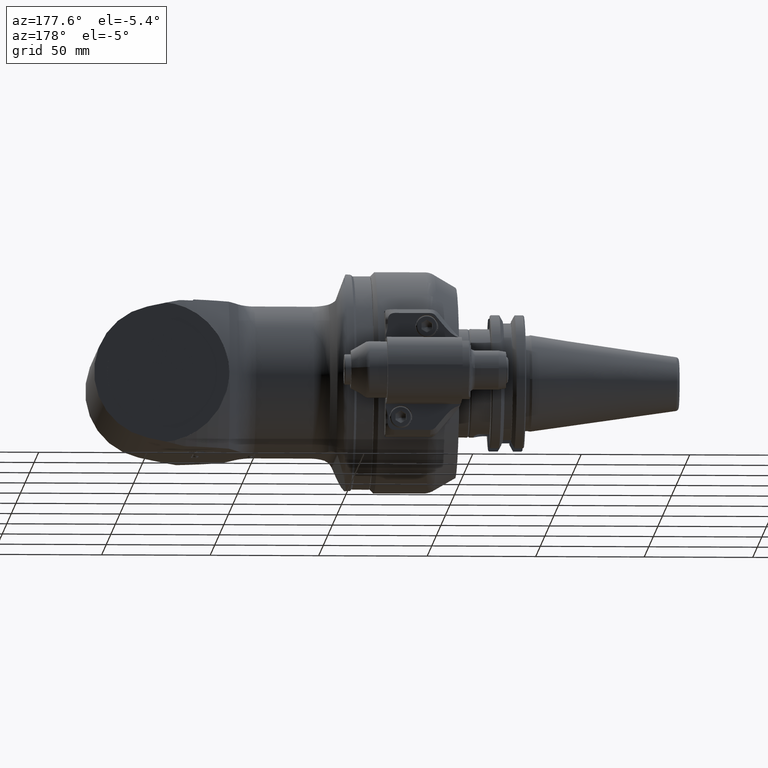
[diagram: clean part render]
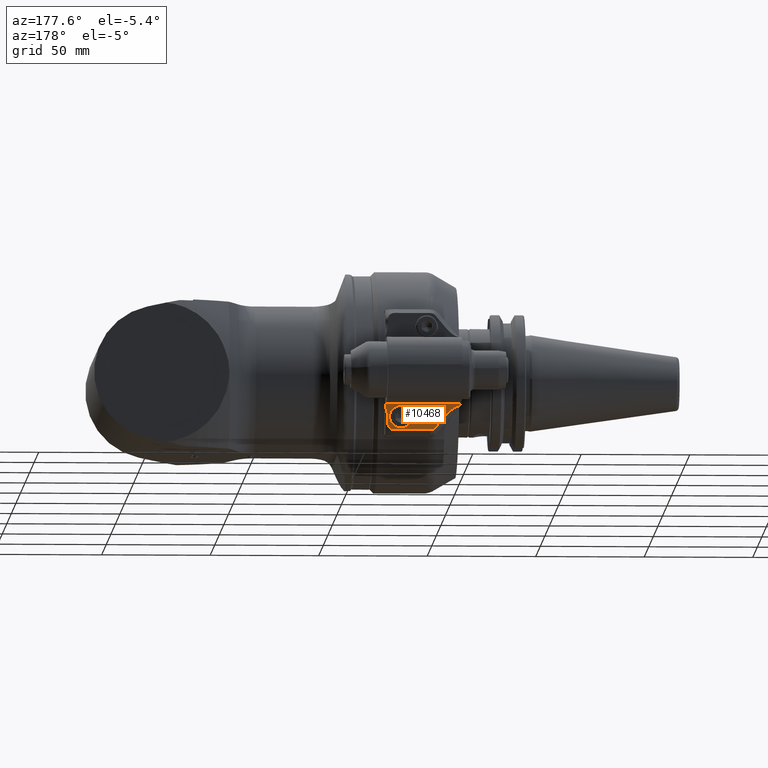
[diagram: same view with one face highlighted and labeled with its STEP entity id]
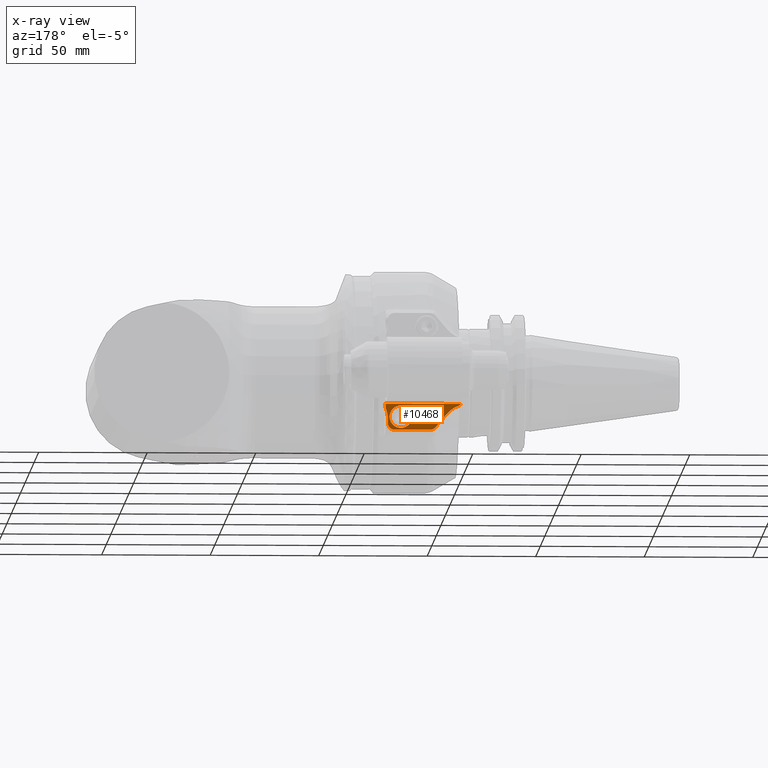
[diagram: x-ray of the same camera — body ghosted, the highlighted face saturated]
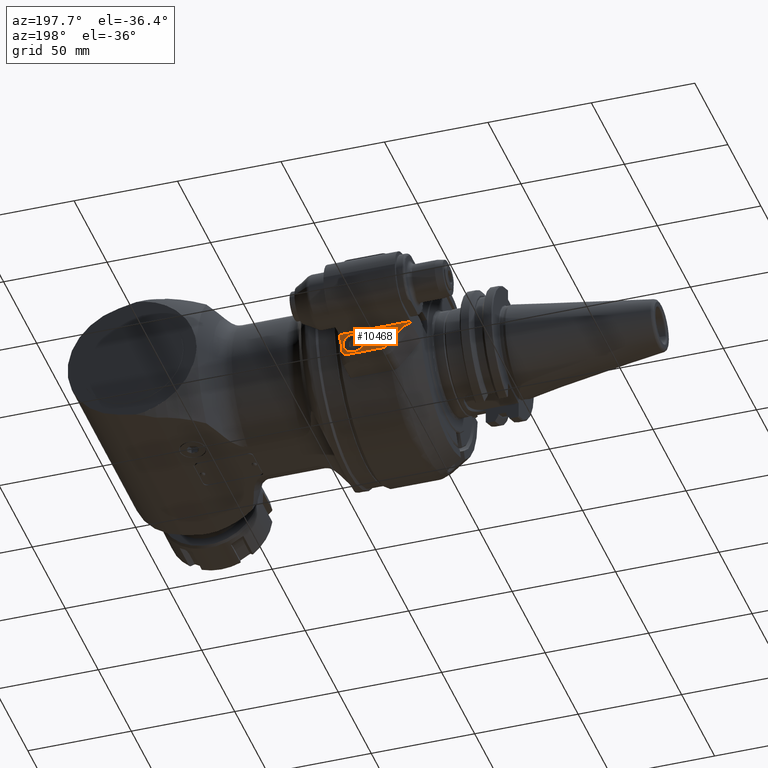
[diagram: same view with one face highlighted and labeled with its STEP entity id]
A machine part, auxiliary view. The second image highlights one B-rep face of the part: STEP entity #10468.
The next image is the same camera in x-ray: the body ghosted, the highlighted face saturated — about 0% of this face is hidden behind the body in this view.
A second angle (auxiliary view) of the same face is appended — the face is thin or edge-on in the first view.
In plain terms, the highlighted planar face has unit normal (0, 1, 0).
Its self-contained STEP definition (entity closure, byte-faithful):
#651=FACE_BOUND('',#3277,.T.);
#1179=LINE('',#21642,#1961);
#1189=LINE('',#21684,#1971);
#1190=LINE('',#21688,#1972);
#1191=LINE('',#21692,#1973);
#1192=LINE('',#21693,#1974);
#1193=LINE('',#21695,#1975);
#1194=LINE('',#21698,#1976);
#1961=VECTOR('',#13230,2.000001393619);
#1971=VECTOR('',#13254,8.20396499999993);
#1972=VECTOR('',#13257,0.370290646033097);
#1973=VECTOR('',#13260,0.0169717717364);
#1974=VECTOR('',#13261,34.5);
#1975=VECTOR('',#13262,2.);
#1976=VECTOR('',#13265,16.58801131772);
#2673=FACE_OUTER_BOUND('',#3276,.T.);
#3276=EDGE_LOOP('',(#8594,#8595,#8596,#8597,#8598,#8599,#8600,#8601,#8602,
#8603,#8604,#8605));
#3277=EDGE_LOOP('',(#8606));
#3780=CIRCLE('',#11291,13.);
#3781=CIRCLE('',#11293,3.);
#3782=CIRCLE('',#11294,13.);
#3783=CIRCLE('',#11295,0.5);
#3784=CIRCLE('',#11296,3.);
#3785=CIRCLE('',#11297,5.2);
#4690=VERTEX_POINT('',#21636);
#4692=VERTEX_POINT('',#21641);
#4705=VERTEX_POINT('',#21676);
#4706=VERTEX_POINT('',#21680);
#4707=VERTEX_POINT('',#21681);
#4708=VERTEX_POINT('',#21683);
#4709=VERTEX_POINT('',#21685);
#4710=VERTEX_POINT('',#21687);
#4711=VERTEX_POINT('',#21689);
#4712=VERTEX_POINT('',#21691);
#4713=VERTEX_POINT('',#21694);
#4714=VERTEX_POINT('',#21696);
#4715=VERTEX_POINT('',#21699);
#6059=EDGE_CURVE('',#4690,#4692,#1179,.T.);
#6074=EDGE_CURVE('',#4690,#4705,#3780,.T.);
#6076=EDGE_CURVE('',#4706,#4707,#3781,.T.);
#6077=EDGE_CURVE('',#4707,#4708,#1189,.T.);
#6078=EDGE_CURVE('',#4708,#4709,#3782,.T.);
#6079=EDGE_CURVE('',#4709,#4710,#1190,.T.);
#6080=EDGE_CURVE('',#4710,#4711,#3783,.T.);
#6081=EDGE_CURVE('',#4712,#4711,#1191,.T.);
#6082=EDGE_CURVE('',#4692,#4712,#1192,.T.);
#6083=EDGE_CURVE('',#4713,#4705,#1193,.T.);
#6084=EDGE_CURVE('',#4713,#4714,#3784,.T.);
#6085=EDGE_CURVE('',#4706,#4714,#1194,.T.);
#6086=EDGE_CURVE('',#4715,#4715,#3785,.T.);
#8594=ORIENTED_EDGE('',*,*,#6076,.T.);
#8595=ORIENTED_EDGE('',*,*,#6077,.T.);
#8596=ORIENTED_EDGE('',*,*,#6078,.T.);
#8597=ORIENTED_EDGE('',*,*,#6079,.T.);
#8598=ORIENTED_EDGE('',*,*,#6080,.T.);
#8599=ORIENTED_EDGE('',*,*,#6081,.F.);
#8600=ORIENTED_EDGE('',*,*,#6082,.F.);
#8601=ORIENTED_EDGE('',*,*,#6059,.F.);
#8602=ORIENTED_EDGE('',*,*,#6074,.T.);
#8603=ORIENTED_EDGE('',*,*,#6083,.F.);
#8604=ORIENTED_EDGE('',*,*,#6084,.T.);
#8605=ORIENTED_EDGE('',*,*,#6085,.F.);
#8606=ORIENTED_EDGE('',*,*,#6086,.T.);
#10048=PLANE('',#11292);
#10468=ADVANCED_FACE('',(#2673,#651),#10048,.T.);
#11291=AXIS2_PLACEMENT_3D('',#21677,#13247,#13248);
#11292=AXIS2_PLACEMENT_3D('',#21679,#13250,#13251);
#11293=AXIS2_PLACEMENT_3D('',#21682,#13252,#13253);
#11294=AXIS2_PLACEMENT_3D('',#21686,#13255,#13256);
#11295=AXIS2_PLACEMENT_3D('',#21690,#13258,#13259);
#11296=AXIS2_PLACEMENT_3D('',#21697,#13263,#13264);
#11297=AXIS2_PLACEMENT_3D('',#21700,#13266,#13267);
#13230=DIRECTION('',(2.131626721942E-13,0.,1.));
#13247=DIRECTION('center_axis',(0.,-1.,0.));
#13248=DIRECTION('ref_axis',(-0.923076960345031,0.,0.384615295171913));
#13250=DIRECTION('center_axis',(0.,1.,0.));
#13251=DIRECTION('ref_axis',(0.,0.,-1.));
#13252=DIRECTION('center_axis',(0.,1.,0.));
#13253=DIRECTION('ref_axis',(6.87357482339175E-7,0.,-0.999999999999764));
#13254=DIRECTION('',(-0.642787609686505,0.,0.766044443119006));
#13255=DIRECTION('center_axis',(0.,-1.,0.));
#13256=DIRECTION('ref_axis',(0.766044443118916,0.,0.642787609686613));
#13257=DIRECTION('',(-0.642787609686505,0.,0.766044443119006));
#13258=DIRECTION('center_axis',(0.,1.,0.));
#13259=DIRECTION('ref_axis',(-0.766044443118323,0.,-0.64278760968732));
#13260=DIRECTION('',(0.,0.,-1.));
#13261=DIRECTION('',(-1.,0.,0.));
#13262=DIRECTION('',(0.,0.,1.));
#13263=DIRECTION('center_axis',(0.,1.,0.));
#13264=DIRECTION('ref_axis',(1.,0.,-2.238209617644E-13));
#13265=DIRECTION('',(1.,0.,-4.538014857056E-9));
#13266=DIRECTION('center_axis',(0.,-1.,0.));
#13267=DIRECTION('ref_axis',(-1.,0.,0.));
#21636=CARTESIAN_POINT('',(-17.,57.25,-17.00000139362));
#21641=CARTESIAN_POINT('',(-17.,57.25,-15.));
#21642=CARTESIAN_POINT('',(-17.,57.25,-17.00000139362));
#21676=CARTESIAN_POINT('',(-17.99999951552,57.25,-22.00000023085));
#21677=CARTESIAN_POINT('Origin',(-4.999999515516,57.25,-22.00000023085));
#21679=CARTESIAN_POINT('Origin',(-34.5,57.25,0.));
#21680=CARTESIAN_POINT('',(-37.58801083324,57.2500000099435,-27.0000000996524));
#21681=CARTESIAN_POINT('',(-39.88614484996,57.25,-25.92836283408));
#21682=CARTESIAN_POINT('Origin',(-37.5880115206,57.25,-24.00000000502));
#21683=CARTESIAN_POINT('',(-45.15955190226,57.25,-19.64376103429));
#21684=CARTESIAN_POINT('',(-39.88614484996,57.25,-25.92836283408));
#21685=CARTESIAN_POINT('',(-51.14500398231,57.25,-15.62202466831));
#21686=CARTESIAN_POINT('Origin',(-55.1181296628,57.25,-27.99999996022));
#21687=CARTESIAN_POINT('',(-51.38302222156,57.25,-15.33836557658));
#21688=CARTESIAN_POINT('',(-51.14500398231,57.25,-15.62202466831));
#21689=CARTESIAN_POINT('',(-51.5,57.25,-15.01697177174));
#21690=CARTESIAN_POINT('Origin',(-51.,57.25,-15.01697177174));
#21691=CARTESIAN_POINT('',(-51.5,57.25,-15.));
#21692=CARTESIAN_POINT('',(-51.5,57.25,-15.));
#21693=CARTESIAN_POINT('',(-17.,57.25,-15.));
#21694=CARTESIAN_POINT('',(-17.99999951552,57.25,-24.00000023085));
#21695=CARTESIAN_POINT('',(-17.99999951552,57.25,-24.00000023085));
#21696=CARTESIAN_POINT('',(-20.99999951552,57.25,-27.00000023085));
#21697=CARTESIAN_POINT('Origin',(-20.99999951552,57.25,-24.00000023085));
#21698=CARTESIAN_POINT('',(-37.58801083324,57.25,-27.00000015558));
#21699=CARTESIAN_POINT('',(-18.8,57.25,-21.));
#21700=CARTESIAN_POINT('Origin',(-24.,57.25,-21.));